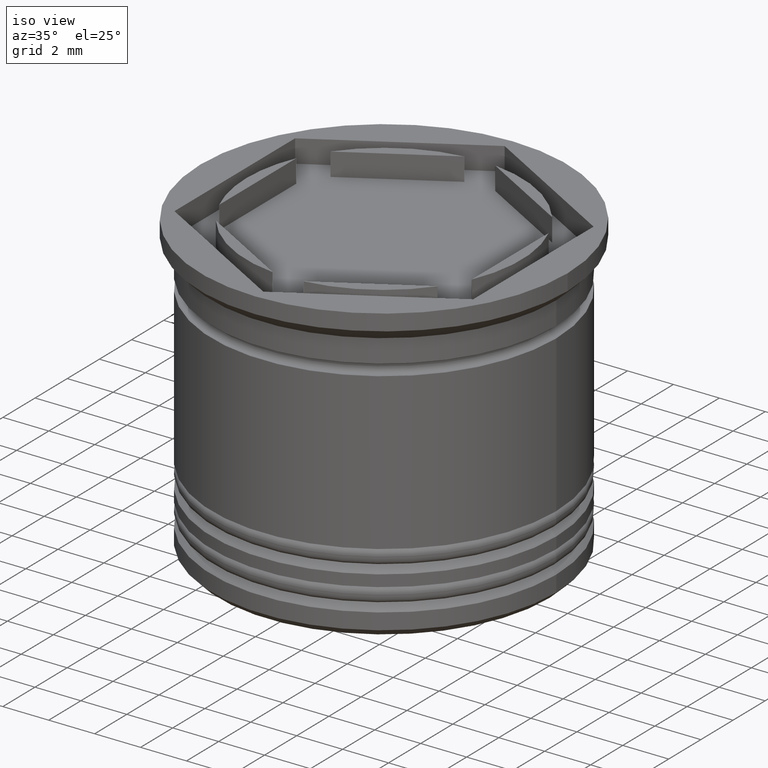
[diagram: clean part render]
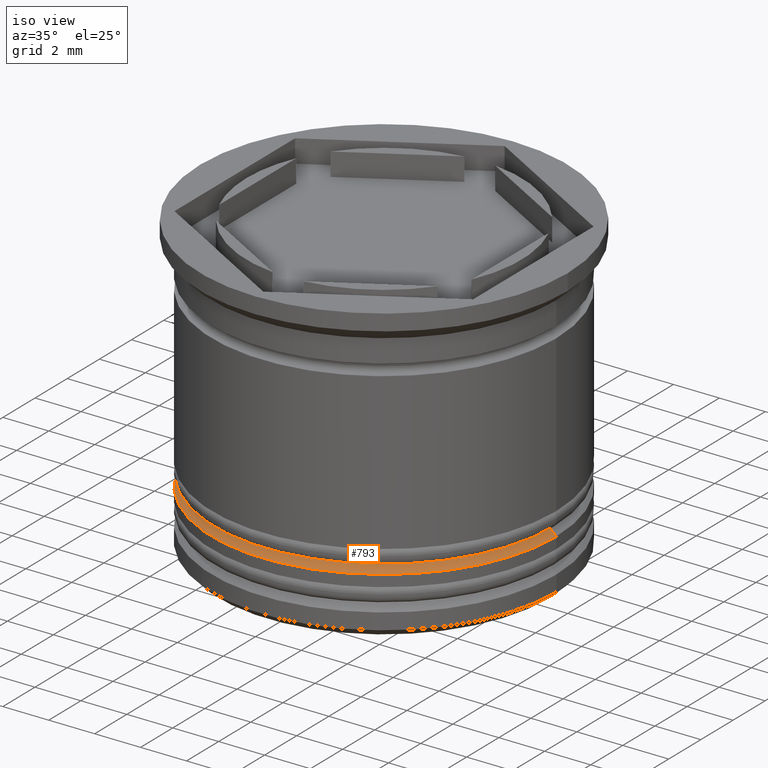
[diagram: same view with one face highlighted and labeled with its STEP entity id]
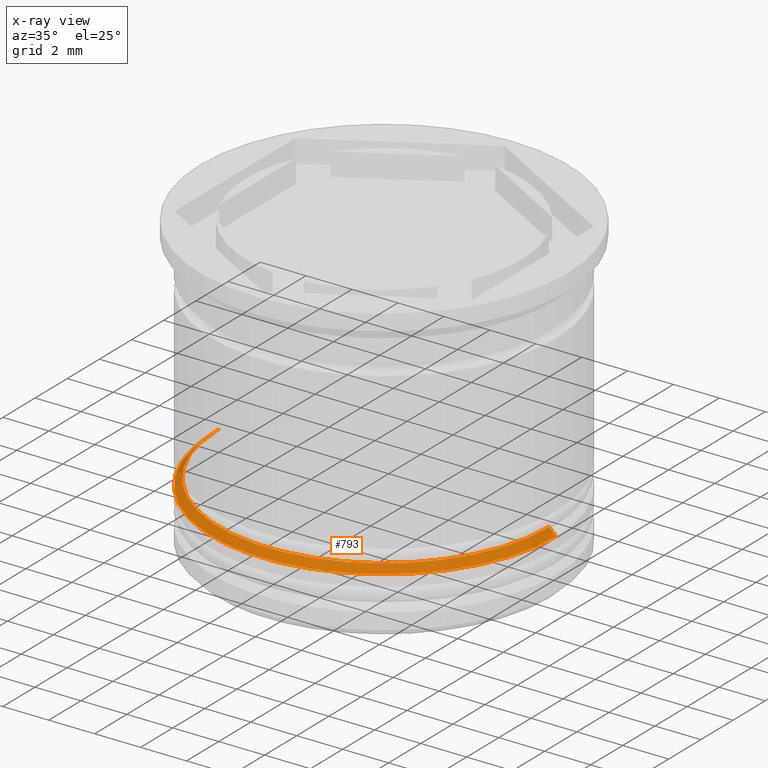
[diagram: x-ray of the same camera — body ghosted, the highlighted face saturated]
A machine part, iso view. The second image highlights one B-rep face of the part: STEP entity #793.
The next image is the same camera in x-ray: the body ghosted, the highlighted face saturated — about 2% of this face is hidden behind the body in this view.
In plain terms, the highlighted conical surface has half-angle 45 deg.
Its self-contained STEP definition (entity closure, byte-faithful):
#60 = ORIENTED_EDGE ( 'NONE', *, *, #1384, .F. ) ;
#88 = FACE_OUTER_BOUND ( 'NONE', #379, .T. ) ;
#110 = CARTESIAN_POINT ( 'NONE',  ( -6.999999999999992006, 0.000000000000000000, -10.00000000000000000 ) ) ;
#222 = VERTEX_POINT ( 'NONE', #650 ) ;
#235 = DIRECTION ( 'NONE',  ( -1.000000000000000000, 0.000000000000000000, 0.000000000000000000 ) ) ;
#379 = EDGE_LOOP ( 'NONE', ( #60, #1961, #1362, #1621 ) ) ;
#519 = LINE ( 'NONE', #1761, #1978 ) ;
#573 = DIRECTION ( 'NONE',  ( -1.000000000000000000, 0.000000000000000000, 0.000000000000000000 ) ) ;
#650 = CARTESIAN_POINT ( 'NONE',  ( 7.200000000000000178, 0.000000000000000000, -10.20000000000000639 ) ) ;
#675 = DIRECTION ( 'NONE',  ( 0.000000000000000000, 0.000000000000000000, -1.000000000000000000 ) ) ;
#678 = AXIS2_PLACEMENT_3D ( 'NONE', #1620, #675, #848 ) ;
#793 = ADVANCED_FACE ( 'NONE', ( #88 ), #1475, .T. ) ;
#794 = EDGE_CURVE ( 'NONE', #1727, #926, #846, .T. ) ;
#841 = EDGE_CURVE ( 'NONE', #1642, #926, #1563, .T. ) ;
#846 = LINE ( 'NONE', #110, #1794 ) ;
#848 = DIRECTION ( 'NONE',  ( -1.000000000000000000, 0.000000000000000000, 0.000000000000000000 ) ) ;
#926 = VERTEX_POINT ( 'NONE', #1114 ) ;
#964 = EDGE_CURVE ( 'NONE', #1727, #222, #1946, .T. ) ;
#979 = DIRECTION ( 'NONE',  ( 0.7071067811865512365, 8.659560562354978464E-17, -0.7071067811865439090 ) ) ;
#1045 = AXIS2_PLACEMENT_3D ( 'NONE', #1819, #1884, #573 ) ;
#1114 = CARTESIAN_POINT ( 'NONE',  ( -7.500000000000001776, 9.184850993605149917E-16, -10.50000000000000355 ) ) ;
#1165 = CARTESIAN_POINT ( 'NONE',  ( -7.200000000000000178, 8.817456953860942303E-16, -10.20000000000000639 ) ) ;
#1362 = ORIENTED_EDGE ( 'NONE', *, *, #794, .T. ) ;
#1371 = CARTESIAN_POINT ( 'NONE',  ( 0.000000000000000000, 0.000000000000000000, -10.00000000000000000 ) ) ;
#1384 = EDGE_CURVE ( 'NONE', #222, #1642, #519, .T. ) ;
#1475 = CONICAL_SURFACE ( 'NONE', #1670, 6.999999999999992006, 0.7853981633974533860 ) ;
#1563 = CIRCLE ( 'NONE', #678, 7.500000000000001776 ) ;
#1615 = DIRECTION ( 'NONE',  ( 0.000000000000000000, 0.000000000000000000, -1.000000000000000000 ) ) ;
#1620 = CARTESIAN_POINT ( 'NONE',  ( 0.000000000000000000, 0.000000000000000000, -10.50000000000000355 ) ) ;
#1621 = ORIENTED_EDGE ( 'NONE', *, *, #841, .F. ) ;
#1642 = VERTEX_POINT ( 'NONE', #1657 ) ;
#1657 = CARTESIAN_POINT ( 'NONE',  ( 7.500000000000001776, 0.000000000000000000, -10.50000000000000355 ) ) ;
#1670 = AXIS2_PLACEMENT_3D ( 'NONE', #1371, #1615, #235 ) ;
#1727 = VERTEX_POINT ( 'NONE', #1165 ) ;
#1761 = CARTESIAN_POINT ( 'NONE',  ( 6.999999999999992006, 8.572527594031463329E-16, -10.00000000000000000 ) ) ;
#1769 = DIRECTION ( 'NONE',  ( -0.7071067811865512365, 0.000000000000000000, -0.7071067811865439090 ) ) ;
#1794 = VECTOR ( 'NONE', #1769, 1000.000000000000000 ) ;
#1819 = CARTESIAN_POINT ( 'NONE',  ( 0.000000000000000000, 0.000000000000000000, -10.20000000000000639 ) ) ;
#1884 = DIRECTION ( 'NONE',  ( -0.000000000000000000, -0.000000000000000000, 1.000000000000000000 ) ) ;
#1946 = CIRCLE ( 'NONE', #1045, 7.200000000000000178 ) ;
#1961 = ORIENTED_EDGE ( 'NONE', *, *, #964, .F. ) ;
#1978 = VECTOR ( 'NONE', #979, 1000.000000000000000 ) ;